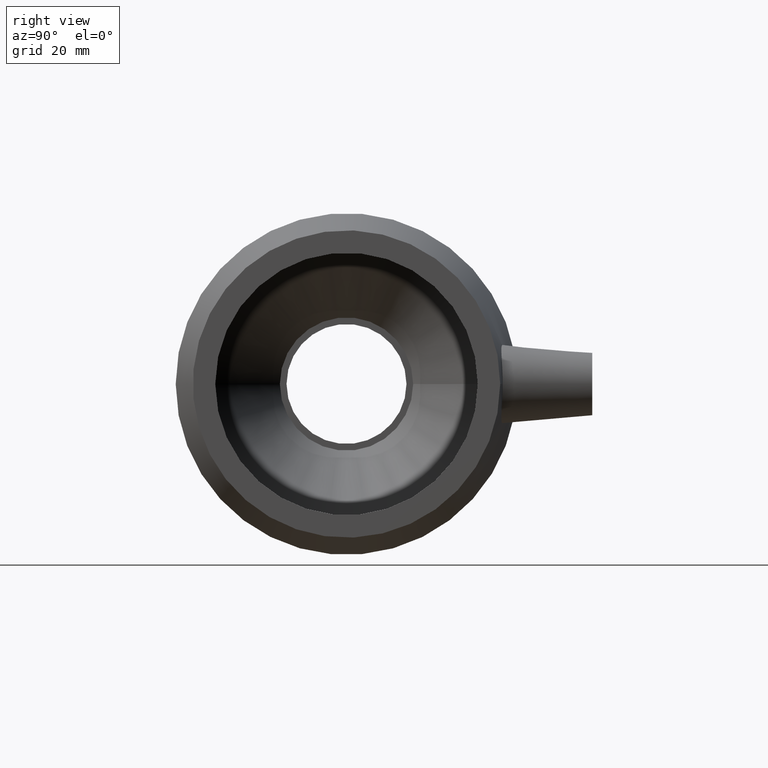
[diagram: clean part render]
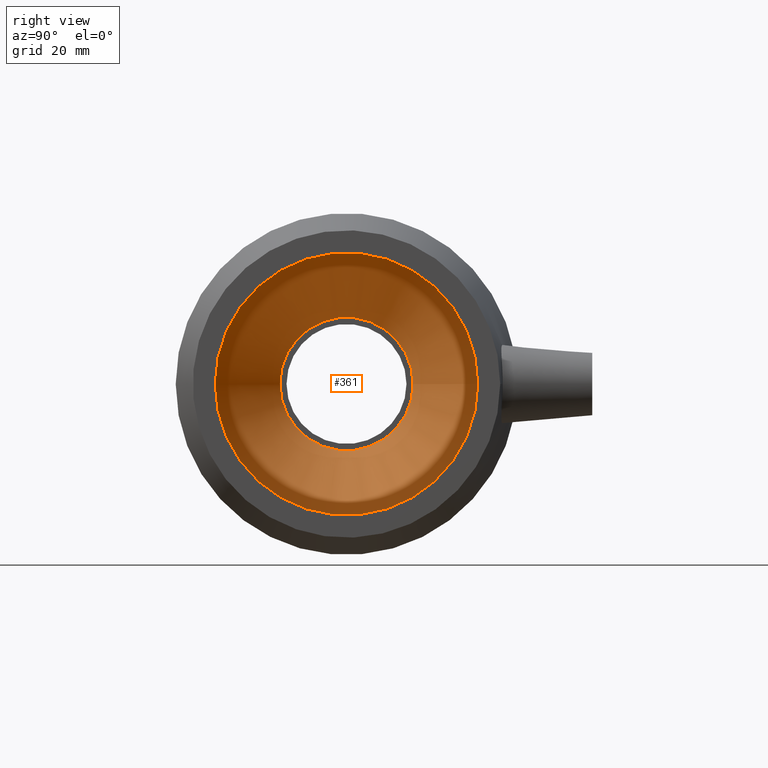
[diagram: same view with one face highlighted and labeled with its STEP entity id]
A machine part, right view. The second image highlights one B-rep face of the part: STEP entity #361.
In plain terms, the highlighted conical surface has half-angle 37.776 deg.
Its self-contained STEP definition (entity closure, byte-faithful):
#25=CONICAL_SURFACE('',#416,23.75,37.7756843059547);
#48=FACE_BOUND('',#144,.T.);
#91=FACE_OUTER_BOUND('',#143,.T.);
#143=EDGE_LOOP('',(#305));
#144=EDGE_LOOP('',(#306));
#183=CIRCLE('',#415,31.5);
#184=CIRCLE('',#417,16.);
#215=VERTEX_POINT('',#702);
#216=VERTEX_POINT('',#705);
#249=EDGE_CURVE('',#215,#215,#183,.T.);
#250=EDGE_CURVE('',#216,#216,#184,.T.);
#305=ORIENTED_EDGE('',*,*,#250,.F.);
#306=ORIENTED_EDGE('',*,*,#249,.T.);
#361=ADVANCED_FACE('',(#91,#48),#25,.F.);
#415=AXIS2_PLACEMENT_3D('',#703,#521,#522);
#416=AXIS2_PLACEMENT_3D('',#704,#523,#524);
#417=AXIS2_PLACEMENT_3D('',#706,#525,#526);
#521=DIRECTION('center_axis',(1.,1.83697019872103E-16,0.));
#522=DIRECTION('ref_axis',(0.,0.,-1.));
#523=DIRECTION('center_axis',(1.,1.83697019872103E-16,0.));
#524=DIRECTION('ref_axis',(-2.09206917912125E-16,1.,0.));
#525=DIRECTION('center_axis',(1.,1.83697019872103E-16,0.));
#526=DIRECTION('ref_axis',(0.,0.,-1.));
#702=CARTESIAN_POINT('',(2.49999999999998,31.5,0.));
#703=CARTESIAN_POINT('Origin',(2.49999999999999,1.13892152320704E-14,0.));
#704=CARTESIAN_POINT('Origin',(-7.50000000000001,9.55224503334935E-15,0.));
#705=CARTESIAN_POINT('',(-17.5,16.,0.));
#706=CARTESIAN_POINT('Origin',(-17.5,7.71527483462833E-15,0.));